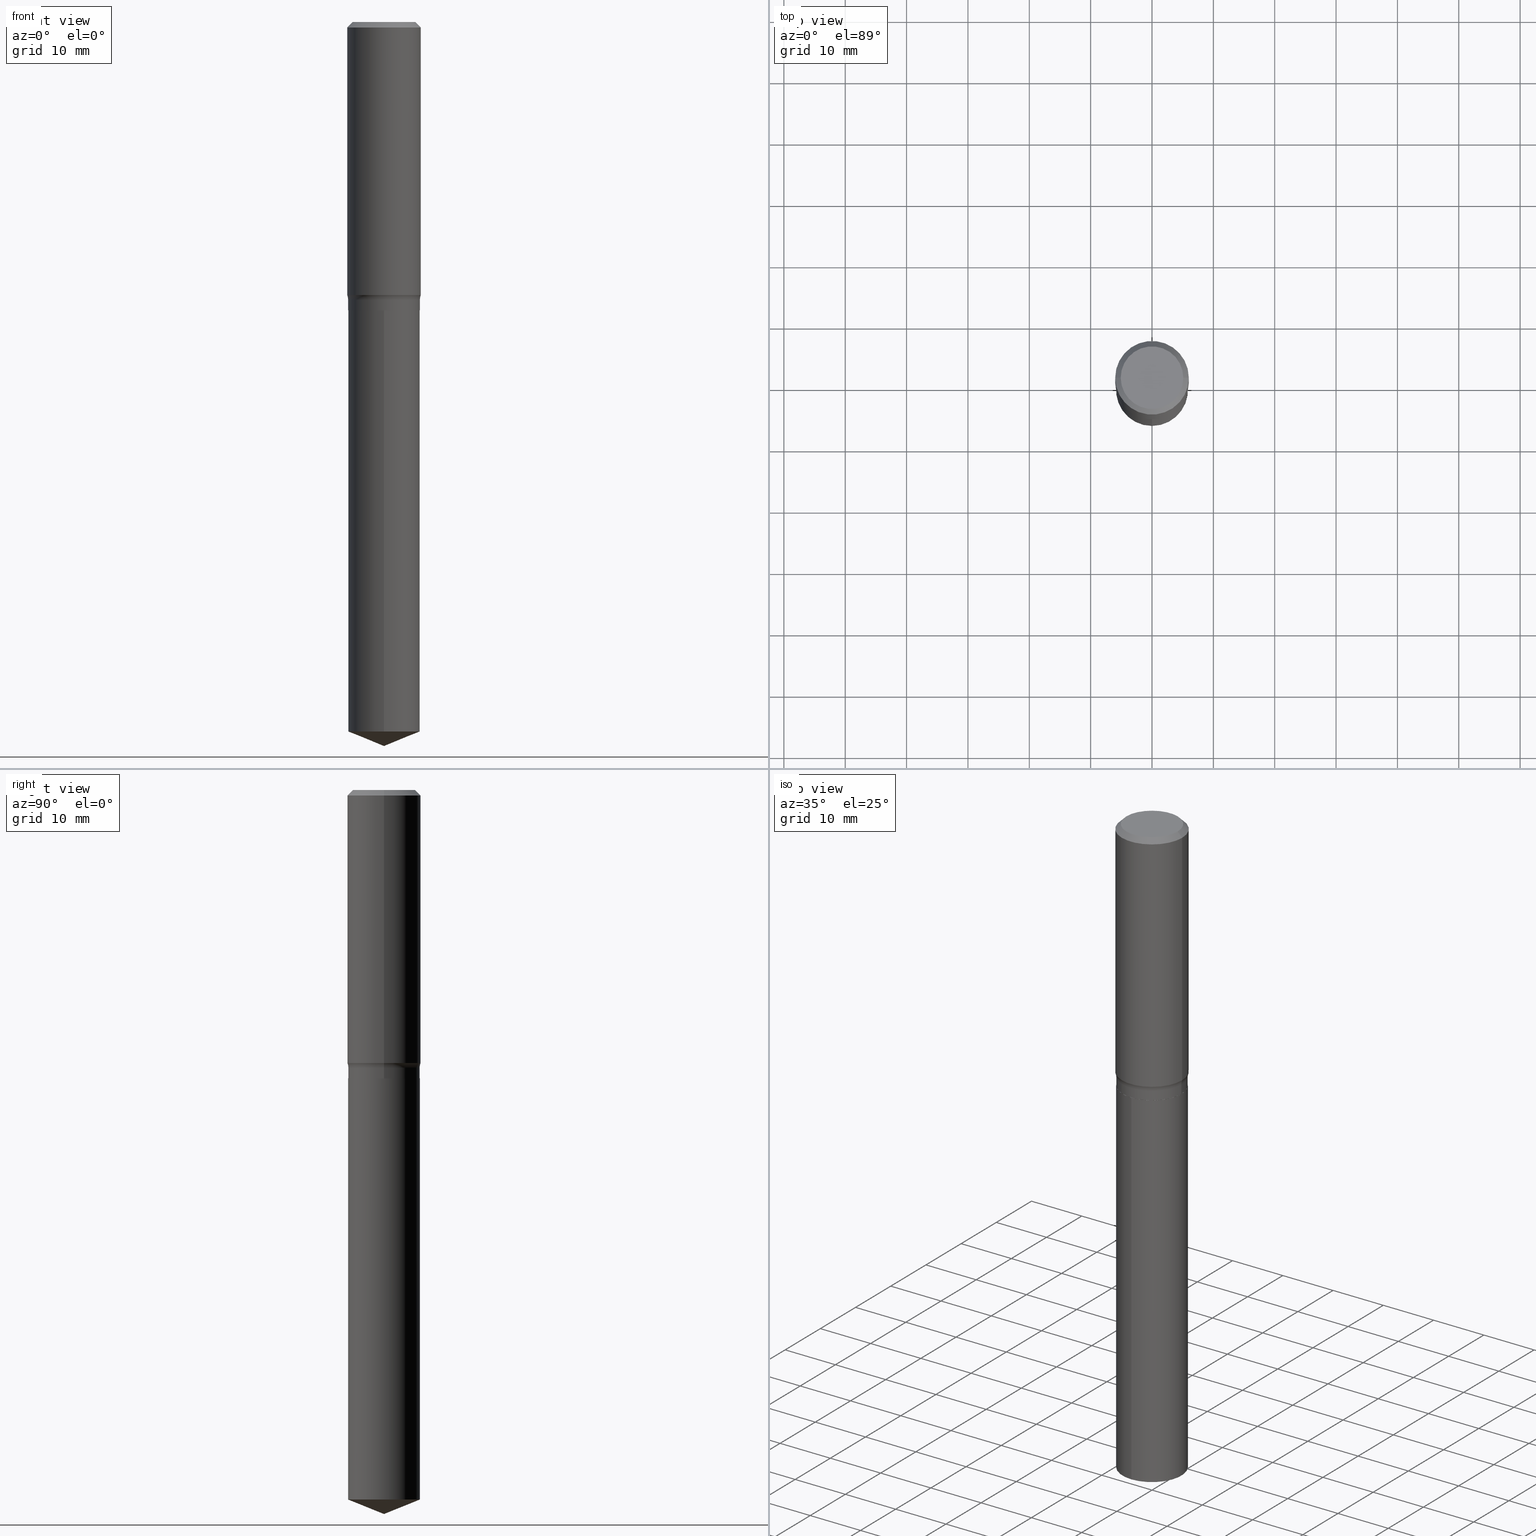
[diagram: canonical four-view strip — front | top / right | iso, engineering-drawing reading convention]
A machine part, canonical four-view strip (front | top / right | iso — engineering-drawing reading convention). The complete STEP part file that produces these views, byte-faithful:
ISO-10303-21;
HEADER;
FILE_DESCRIPTION (( 'STEP AP203' ),
    '1' );
FILE_NAME ('69310.STEP',
    '2024-04-19T17:47:21',
    ( '' ),
    ( '' ),
    'SwSTEP 2.0',
    'SolidWorks 2023',
    '' );
FILE_SCHEMA (( 'CONFIG_CONTROL_DESIGN' ));
ENDSEC;

DATA;
#1 = CARTESIAN_POINT ( 'NONE',  ( -0.2303000000000000047, -4.703801042749758729E-15, -1.850200000000000067 ) ) ;
#2 = CYLINDRICAL_SURFACE ( 'NONE', #242, 0.2303000000000000047 ) ;
#3 = CIRCLE ( 'NONE', #422, 0.2362000000000002153 ) ;
#4 = EDGE_LOOP ( 'NONE', ( #219, #205 ) ) ;
#5 = SECURITY_CLASSIFICATION_LEVEL ( 'unclassified' ) ;
#6 = EDGE_CURVE ( 'NONE', #470, #48, #251, .T. ) ;
#7 = ORIENTED_EDGE ( 'NONE', *, *, #92, .T. ) ;
#8 = CARTESIAN_POINT ( 'NONE',  ( 0.000000000000000000, 0.000000000000000000, 0.000000000000000000 ) ) ;
#9 = COORDINATED_UNIVERSAL_TIME_OFFSET ( 5, 0, .BEHIND. ) ;
#10 = DIRECTION ( 'NONE',  ( -6.982962677686265922E-15, -1.000000000000000000, 3.558638289619100968E-15 ) ) ;
#11 = CARTESIAN_POINT ( 'NONE',  ( -8.491645117030201611E-28, 1.212387596451452399E-13, 34.72407874015748064 ) ) ;
#12 = PERSON_AND_ORGANIZATION ( #91, #162 ) ;
#13 = CARTESIAN_POINT ( 'NONE',  ( -5.008488096090115757E-47, 7.150793614331959538E-33, 2.048068690724057264E-18 ) ) ;
#14 = ORIENTED_EDGE ( 'NONE', *, *, #139, .F. ) ;
#15 = DIRECTION ( 'NONE',  ( -2.445468806185136597E-29, 3.491481338843145583E-15, 1.000000000000000000 ) ) ;
#16 = AXIS2_PLACEMENT_3D ( 'NONE', #218, #184, #403 ) ;
#17 = ORIENTED_EDGE ( 'NONE', *, *, #97, .F. ) ;
#18 = AXIS2_PLACEMENT_3D ( 'NONE', #331, #343, #460 ) ;
#19 = DIRECTION ( 'NONE',  ( 2.445468806185136597E-29, -3.491481338843145583E-15, -1.000000000000000000 ) ) ;
#20 = ORIENTED_EDGE ( 'NONE', *, *, #215, .F. ) ;
#21 = CYLINDRICAL_SURFACE ( 'NONE', #370, 0.2362000000000001043 ) ;
#22 = ORIENTED_EDGE ( 'NONE', *, *, #169, .T. ) ;
#23 = APPROVAL_ROLE ( '' ) ;
#24 = CARTESIAN_POINT ( 'NONE',  ( 1.636379920455622583E-15, 0.2302999999999935377, -1.850700000000000900 ) ) ;
#25 =( NAMED_UNIT ( * ) SI_UNIT ( $, .STERADIAN. ) SOLID_ANGLE_UNIT ( ) );
#26 = ORIENTED_EDGE ( 'NONE', *, *, #417, .T. ) ;
#27 = CONICAL_SURFACE ( 'NONE', #466, 0.2361999999999999933, 0.7853981633974452814 ) ;
#28 = CARTESIAN_POINT ( 'NONE',  ( 0.2303000000000000047, -1.608176304671147266E-15, 1.122983511465803999E-29 ) ) ;
#29 = APPROVAL ( #424, 'UNSPECIFIED' ) ;
#30 = CYLINDRICAL_SURFACE ( 'NONE', #73, 0.2303000000000000047 ) ;
#31 = DIRECTION ( 'NONE',  ( 6.588037525764794446E-15, 0.9271838545667895337, 0.3746065934159066302 ) ) ;
#32 = DIRECTION ( 'NONE',  ( 1.000000000000000000, -6.982962677686266711E-15, 4.876176775795935793E-29 ) ) ;
#33 = PRODUCT_DEFINITION ( 'UNKNOWN', '', #442, #75 ) ;
#34 = CIRCLE ( 'NONE', #16, 0.2303000000000000047 ) ;
#35 = CIRCLE ( 'NONE', #459, 0.2303000000000000047 ) ;
#36 = CARTESIAN_POINT ( 'NONE',  ( -0.2298000000000000043, -4.826208079846189020E-15, -1.850700000000000012 ) ) ;
#37 = CARTESIAN_POINT ( 'NONE',  ( -1.001697619218023151E-46, 1.430158722866391908E-32, 4.096137381448114529E-18 ) ) ;
#38 = CYLINDRICAL_SURFACE ( 'NONE', #234, 0.2303000000000000047 ) ;
#39 = ADVANCED_FACE ( 'NONE', ( #211 ), #233, .T. ) ;
#40 = ORIENTED_EDGE ( 'NONE', *, *, #227, .F. ) ;
#41 = PERSON_AND_ORGANIZATION ( #91, #162 ) ;
#42 = AXIS2_PLACEMENT_3D ( 'NONE', #469, #243, #175 ) ;
#43 = TOROIDAL_SURFACE ( 'NONE', #173, 0.3082999999999999630, 0.07799999999999995826 ) ;
#44 = ADVANCED_FACE ( 'NONE', ( #266 ), #281, .T. ) ;
#45 = ORIENTED_EDGE ( 'NONE', *, *, #80, .T. ) ;
#46 = CALENDAR_DATE ( 2024, 19, 4 ) ;
#47 = DIRECTION ( 'NONE',  ( 1.000000000000000000, -6.982962677686267499E-15, 0.000000000000000000 ) ) ;
#48 = VERTEX_POINT ( 'NONE', #258 ) ;
#49 = PERSON_AND_ORGANIZATION ( #91, #162 ) ;
#50 = EDGE_CURVE ( 'NONE', #48, #470, #187, .T. ) ;
#51 = FACE_OUTER_BOUND ( 'NONE', #432, .T. ) ;
#52 = CIRCLE ( 'NONE', #360, 0.2303000000000000047 ) ;
#53 = APPROVAL_STATUS ( 'not_yet_approved' ) ;
#54 = DIRECTION ( 'NONE',  ( 1.000000000000000000, -6.982962677686265922E-15, 0.000000000000000000 ) ) ;
#55 = VERTEX_POINT ( 'NONE', #190 ) ;
#56 = FACE_OUTER_BOUND ( 'NONE', #4, .T. ) ;
#57 = DIRECTION ( 'NONE',  ( 1.000000000000000000, -6.982962677686266711E-15, 4.876140833081945105E-29 ) ) ;
#58 = CARTESIAN_POINT ( 'NONE',  ( 4.525829119606832626E-29, -6.461684513797009689E-15, -1.850700000000000012 ) ) ;
#59 = VECTOR ( 'NONE', #148, 39.37007874015748143 ) ;
#60 = ORIENTED_EDGE ( 'NONE', *, *, #312, .T. ) ;
#61 = VECTOR ( 'NONE', #102, 39.37007874015748143 ) ;
#62 = ORIENTED_EDGE ( 'NONE', *, *, #201, .F. ) ;
#63 = DIRECTION ( 'NONE',  ( -2.445468806185136597E-29, 3.491481338843145583E-15, 1.000000000000000000 ) ) ;
#64 = ORIENTED_EDGE ( 'NONE', *, *, #169, .F. ) ;
#65 = CARTESIAN_POINT ( 'NONE',  ( 0.2007700000000000040, -1.560767496960719672E-15, 4.096137381458473721E-18 ) ) ;
#66 = AXIS2_PLACEMENT_3D ( 'NONE', #208, #430, #54 ) ;
#67 = VECTOR ( 'NONE', #306, 39.37007874015748143 ) ;
#68 = DIRECTION ( 'NONE',  ( 1.000000000000000000, -6.982962677686266711E-15, 4.876140833081945105E-29 ) ) ;
#69 = DIMENSIONAL_EXPONENTS ( 1.000000000000000000, 0.000000000000000000, 0.000000000000000000, 0.000000000000000000, 0.000000000000000000, 0.000000000000000000, 0.000000000000000000 ) ;
#70 = FACE_OUTER_BOUND ( 'NONE', #88, .T. ) ;
#71 = CARTESIAN_POINT ( 'NONE',  ( 4.525829119606832626E-29, -6.461684513797009689E-15, -1.850700000000000012 ) ) ;
#72 = DIRECTION ( 'NONE',  ( 7.105427357601001859E-15, 1.000000000000000000, -3.491481338843145583E-15 ) ) ;
#73 = AXIS2_PLACEMENT_3D ( 'NONE', #71, #374, #336 ) ;
#74 = CC_DESIGN_SECURITY_CLASSIFICATION ( #100, ( #442 ) ) ;
#75 = DESIGN_CONTEXT ( 'detailed design', #305, 'design' ) ;
#76 = CARTESIAN_POINT ( 'NONE',  ( 1.113408915880530409E-28, -1.589657078221701403E-14, -4.552952760190164483 ) ) ;
#77 = EDGE_CURVE ( 'NONE', #394, #138, #373, .T. ) ;
#78 = VERTEX_POINT ( 'NONE', #263 ) ;
#79 = DATE_AND_TIME ( #46, #134 ) ;
#80 = EDGE_CURVE ( 'NONE', #55, #428, #337, .T. ) ;
#81 = ORIENTED_EDGE ( 'NONE', *, *, #186, .F. ) ;
#82 = CC_DESIGN_APPROVAL ( #450, ( #33 ) ) ;
#83 = COORDINATED_UNIVERSAL_TIME_OFFSET ( 5, 0, .BEHIND. ) ;
#84 = CARTESIAN_POINT ( 'NONE',  ( 4.525829119606832626E-29, -6.461684513797009689E-15, -1.850700000000000012 ) ) ;
#85 = PERSON_AND_ORGANIZATION_ROLE ( 'design_owner' ) ;
#86 = DIRECTION ( 'NONE',  ( 6.982962677686265922E-15, 1.000000000000000000, -3.491489177998303329E-15 ) ) ;
#87 = CARTESIAN_POINT ( 'NONE',  ( -0.2361999999999999933, 1.525672600634282748E-15, -0.03543000000000021826 ) ) ;
#88 = EDGE_LOOP ( 'NONE', ( #419, #182, #359, #333 ) ) ;
#89 = DIRECTION ( 'NONE',  ( 2.438088387897960049E-29, -3.491481338843145188E-15, -1.000000000000000000 ) ) ;
#90 = ORIENTED_EDGE ( 'NONE', *, *, #358, .F. ) ;
#91 = PERSON ( 'UNSPECIFIED', 'UNSPECIFIED', 'UNSPECIFIED', ('UNSPECIFIED'), ('UNSPECIFIED'), ('UNSPECIFIED') ) ;
#92 = EDGE_CURVE ( 'NONE', #78, #481, #181, .T. ) ;
#93 = FACE_OUTER_BOUND ( 'NONE', #129, .T. ) ;
#94 = VERTEX_POINT ( 'NONE', #340 ) ;
#95 = PRODUCT_DEFINITION_SHAPE ( 'NONE', 'NONE',  #33 ) ;
#96 = PLANE ( 'NONE',  #352 ) ;
#97 = EDGE_CURVE ( 'NONE', #428, #159, #488, .T. ) ;
#98 = AXIS2_PLACEMENT_3D ( 'NONE', #449, #151, #32 ) ;
#99 = ORIENTED_EDGE ( 'NONE', *, *, #465, .T. ) ;
#100 = SECURITY_CLASSIFICATION ( '', '', #5 ) ;
#101 = DATE_AND_TIME ( #367, #490 ) ;
#102 = DIRECTION ( 'NONE',  ( -2.445463332132347072E-29, 3.491489177998303329E-15, 1.000000000000000000 ) ) ;
#103 = ORIENTED_EDGE ( 'NONE', *, *, #116, .T. ) ;
#104 = CARTESIAN_POINT ( 'NONE',  ( 4.356847225099440869E-29, -6.220423153282950007E-15, -1.781600000000000517 ) ) ;
#105 = DIRECTION ( 'NONE',  ( 1.000000000000000000, -6.982962677686266711E-15, 4.876176775795935793E-29 ) ) ;
#106 = CARTESIAN_POINT ( 'NONE',  ( 8.664295980313993487E-31, -1.237031838352134079E-16, -0.03543000000000021826 ) ) ;
#107 = CARTESIAN_POINT ( 'NONE',  ( -0.2298000000000000043, -4.828857307020299432E-15, -1.850700000000000012 ) ) ;
#108 = AXIS2_PLACEMENT_3D ( 'NONE', #261, #296, #372 ) ;
#109 = LINE ( 'NONE', #146, #320 ) ;
#110 = MANIFOLD_SOLID_BREP ( 'Body-Move/Copy2[1]', #390 ) ;
#111 = CARTESIAN_POINT ( 'NONE',  ( 1.636379920455555924E-15, 0.2302999999999935377, -1.850700000000000900 ) ) ;
#112 = CC_DESIGN_DATE_AND_TIME_ASSIGNMENT ( #273, #158, ( #33 ) ) ;
#113 = CARTESIAN_POINT ( 'NONE',  ( 4.525829119606832626E-29, -6.461684513797009689E-15, -1.850700000000000012 ) ) ;
#114 = DIRECTION ( 'NONE',  ( -2.445468806185136597E-29, 3.491481338843145583E-15, 1.000000000000000000 ) ) ;
#115 = LINE ( 'NONE', #107, #380 ) ;
#116 = EDGE_CURVE ( 'NONE', #141, #144, #330, .T. ) ;
#117 = AXIS2_PLACEMENT_3D ( 'NONE', #13, #89, #128 ) ;
#118 = DIRECTION ( 'NONE',  ( -6.474490251793181784E-15, -0.9271838545667869802, 0.3746065934159131250 ) ) ;
#119 = CIRCLE ( 'NONE', #458, 0.2362000000000002153 ) ;
#120 = AXIS2_PLACEMENT_3D ( 'NONE', #8, #385, #420 ) ;
#121 = ADVANCED_FACE ( 'NONE', ( #70 ), #30, .T. ) ;
#122 = VERTEX_POINT ( 'NONE', #1 ) ;
#123 = PERSON_AND_ORGANIZATION ( #91, #162 ) ;
#124 = AXIS2_PLACEMENT_3D ( 'NONE', #104, #364, #316 ) ;
#125 = ADVANCED_FACE ( 'NONE', ( #486 ), #150, .T. ) ;
#126 = CC_DESIGN_APPROVAL ( #395, ( #100 ) ) ;
#127 = PERSON_AND_ORGANIZATION_ROLE ( 'classification_officer' ) ;
#128 = DIRECTION ( 'NONE',  ( -1.000000000000000000, 6.982962677686265922E-15, -4.876176775795935793E-29 ) ) ;
#129 = EDGE_LOOP ( 'NONE', ( #230, #444, #62, #256 ) ) ;
#130 = CARTESIAN_POINT ( 'NONE',  ( 4.525829119606832626E-29, -6.461684513797009689E-15, -1.850700000000000012 ) ) ;
#131 = ORIENTED_EDGE ( 'NONE', *, *, #116, .F. ) ;
#132 = AXIS2_PLACEMENT_3D ( 'NONE', #245, #386, #86 ) ;
#133 = FACE_OUTER_BOUND ( 'NONE', #280, .T. ) ;
#134 = LOCAL_TIME ( 13, 47, 21.00000000000000000, #9 ) ;
#135 = EDGE_LOOP ( 'NONE', ( #20, #200, #99, #283 ) ) ;
#136 = EDGE_CURVE ( 'NONE', #122, #138, #52, .T. ) ;
#137 = PLANE ( 'NONE',  #132 ) ;
#138 = VERTEX_POINT ( 'NONE', #410 ) ;
#139 = EDGE_CURVE ( 'NONE', #400, #122, #115, .T. ) ;
#140 = DIRECTION ( 'NONE',  ( -2.445468806185136597E-29, 3.491481338843145583E-15, 1.000000000000000000 ) ) ;
#141 = VERTEX_POINT ( 'NONE', #185 ) ;
#142 = DIRECTION ( 'NONE',  ( -0.7071067811866199593, 7.493145998870616062E-15, 0.7071067811864750752 ) ) ;
#143 = EDGE_CURVE ( 'NONE', #323, #144, #34, .T. ) ;
#144 = VERTEX_POINT ( 'NONE', #334 ) ;
#145 = AXIS2_PLACEMENT_3D ( 'NONE', #11, #165, #471 ) ;
#146 = CARTESIAN_POINT ( 'NONE',  ( -0.2362000000000001043, 1.678301941865357380E-15, -1.161852468318209317E-29 ) ) ;
#147 = DIRECTION ( 'NONE',  ( -2.445463332132347352E-29, 3.491489177998303329E-15, 1.000000000000000000 ) ) ;
#148 = DIRECTION ( 'NONE',  ( 0.7071067811866199593, -2.468850131083015945E-15, 0.7071067811864750752 ) ) ;
#149 = DIRECTION ( 'NONE',  ( 1.000000000000000000, -6.982962677686266711E-15, 0.000000000000000000 ) ) ;
#150 = CYLINDRICAL_SURFACE ( 'NONE', #98, 0.2362000000000001043 ) ;
#151 = DIRECTION ( 'NONE',  ( -2.445468806185136597E-29, 3.491481338843145583E-15, 1.000000000000000000 ) ) ;
#152 = CIRCLE ( 'NONE', #241, 0.2303000000000000047 ) ;
#153 = AXIS2_PLACEMENT_3D ( 'NONE', #84, #389, #10 ) ;
#154 = CARTESIAN_POINT ( 'NONE',  ( 4.525829119606832626E-29, -6.461684513797009689E-15, -1.850700000000000012 ) ) ;
#155 = CARTESIAN_POINT ( 'NONE',  ( 0.000000000000000000, 0.000000000000000000, 0.000000000000000000 ) ) ;
#156 = CONICAL_SURFACE ( 'NONE', #415, 0.2298000000000000043, 0.7853981633975507526 ) ;
#157 = ORIENTED_EDGE ( 'NONE', *, *, #50, .F. ) ;
#158 = DATE_TIME_ROLE ( 'creation_date' ) ;
#159 = VERTEX_POINT ( 'NONE', #24 ) ;
#160 = EDGE_CURVE ( 'NONE', #94, #481, #109, .T. ) ;
#161 = VECTOR ( 'NONE', #472, 39.37007874015748143 ) ;
#162 = ORGANIZATION ( 'UNSPECIFIED', 'UNSPECIFIED', '' ) ;
#163 = CARTESIAN_POINT ( 'NONE',  ( -0.2303000000000000047, -4.703801042749758729E-15, -1.781600000000000517 ) ) ;
#164 = CALENDAR_DATE ( 2024, 19, 4 ) ;
#165 = DIRECTION ( 'NONE',  ( -2.445463332132347352E-29, 3.491489177998303329E-15, 1.000000000000000000 ) ) ;
#166 = ORIENTED_EDGE ( 'NONE', *, *, #465, .F. ) ;
#167 = APPROVAL_ROLE ( '' ) ;
#168 = CARTESIAN_POINT ( 'NONE',  ( 4.524606385203739825E-29, -6.459938773127588186E-15, -1.850200000000000067 ) ) ;
#169 = EDGE_CURVE ( 'NONE', #94, #141, #119, .T. ) ;
#170 = ORIENTED_EDGE ( 'NONE', *, *, #143, .T. ) ;
#171 = AXIS2_PLACEMENT_3D ( 'NONE', #355, #398, #354 ) ;
#172 = CARTESIAN_POINT ( 'NONE',  ( 0.2362000000000001043, -1.649375784469496920E-15, 1.151752954443000508E-29 ) ) ;
#173 = AXIS2_PLACEMENT_3D ( 'NONE', #315, #238, #285 ) ;
#174 = EDGE_LOOP ( 'NONE', ( #14, #369, #382, #477 ) ) ;
#175 = DIRECTION ( 'NONE',  ( 1.000000000000000000, -6.982962677686267499E-15, 0.000000000000000000 ) ) ;
#176 = ORIENTED_EDGE ( 'NONE', *, *, #307, .F. ) ;
#177 = ADVANCED_FACE ( 'NONE', ( #204 ), #376, .F. ) ;
#178 = EDGE_LOOP ( 'NONE', ( #356, #60 ) ) ;
#179 = APPROVAL_STATUS ( 'not_yet_approved' ) ;
#180 = DIRECTION ( 'NONE',  ( 1.000000000000000000, -6.982962677686266711E-15, 4.876176775795935793E-29 ) ) ;
#181 = CIRCLE ( 'NONE', #108, 0.2361999999999999933 ) ;
#182 = ORIENTED_EDGE ( 'NONE', *, *, #97, .T. ) ;
#183 = COORDINATED_UNIVERSAL_TIME_OFFSET ( 5, 0, .BEHIND. ) ;
#184 = DIRECTION ( 'NONE',  ( -2.445468806185136597E-29, 3.491481338843145583E-15, 1.000000000000000000 ) ) ;
#185 = CARTESIAN_POINT ( 'NONE',  ( 0.2362000000000002153, -7.765896418643460673E-15, -1.751841135774361291 ) ) ;
#186 = EDGE_CURVE ( 'NONE', #48, #481, #448, .T. ) ;
#187 = CIRCLE ( 'NONE', #299, 0.2007700000000000040 ) ;
#188 = LINE ( 'NONE', #301, #61 ) ;
#189 = ADVANCED_FACE ( 'NONE', ( #408 ), #21, .T. ) ;
#190 = CARTESIAN_POINT ( 'NONE',  ( 1.136162264108688643E-28, -1.622145872098012038E-14, -4.645999999999999908 ) ) ;
#191 = LINE ( 'NONE', #220, #321 ) ;
#192 = CIRCLE ( 'NONE', #42, 0.2298000000000000043 ) ;
#193 = PERSON_AND_ORGANIZATION_ROLE ( 'design_supplier' ) ;
#194 = CONICAL_SURFACE ( 'NONE', #145, 97.44436430772883284, 1.186823891356146410 ) ;
#195 = ORIENTED_EDGE ( 'NONE', *, *, #201, .T. ) ;
#196 = CALENDAR_DATE ( 2024, 19, 4 ) ;
#197 = ADVANCED_FACE ( 'NONE', ( #326 ), #357, .F. ) ;
#198 = APPLICATION_PROTOCOL_DEFINITION ( 'international standard', 'config_control_design', 1994, #249 ) ;
#199 = LINE ( 'NONE', #172, #260 ) ;
#200 = ORIENTED_EDGE ( 'NONE', *, *, #136, .T. ) ;
#201 = EDGE_CURVE ( 'NONE', #138, #122, #152, .T. ) ;
#202 = CIRCLE ( 'NONE', #153, 0.2303000000000000047 ) ;
#203 = LINE ( 'NONE', #287, #226 ) ;
#204 = FACE_OUTER_BOUND ( 'NONE', #464, .T. ) ;
#205 = ORIENTED_EDGE ( 'NONE', *, *, #284, .F. ) ;
#206 = MECHANICAL_CONTEXT ( 'NONE', #249, 'mechanical' ) ;
#207 = ADVANCED_FACE ( 'NONE', ( #133 ), #27, .T. ) ;
#208 = CARTESIAN_POINT ( 'NONE',  ( 4.356847225099440869E-29, -6.220423153282950007E-15, -1.781600000000000517 ) ) ;
#209 = ORIENTED_EDGE ( 'NONE', *, *, #227, .T. ) ;
#210 = DIRECTION ( 'NONE',  ( -2.445468806185136877E-29, 3.491481338843145188E-15, 1.000000000000000000 ) ) ;
#211 = FACE_OUTER_BOUND ( 'NONE', #174, .T. ) ;
#212 = DIRECTION ( 'NONE',  ( 1.000000000000000000, -6.982962677686267499E-15, 0.000000000000000000 ) ) ;
#213 = APPROVAL_PERSON_ORGANIZATION ( #49, #395, #23 ) ;
#214 = ORIENTED_EDGE ( 'NONE', *, *, #399, .T. ) ;
#215 = EDGE_CURVE ( 'NONE', #122, #323, #203, .T. ) ;
#216 = CARTESIAN_POINT ( 'NONE',  ( 0.000000000000000000, 0.000000000000000000, 0.000000000000000000 ) ) ;
#217 = ORIENTED_EDGE ( 'NONE', *, *, #399, .F. ) ;
#218 = CARTESIAN_POINT ( 'NONE',  ( 4.356847225099440869E-29, -6.220423153282950007E-15, -1.781600000000000517 ) ) ;
#219 = ORIENTED_EDGE ( 'NONE', *, *, #270, .F. ) ;
#220 = CARTESIAN_POINT ( 'NONE',  ( 1.136162264108688643E-28, -1.622145872098012038E-14, -4.645999999999999908 ) ) ;
#221 = CIRCLE ( 'NONE', #66, 0.2303000000000000047 ) ;
#222 = ADVANCED_FACE ( 'NONE', ( #56 ), #96, .F. ) ;
#223 = DIRECTION ( 'NONE',  ( -2.445468806185136597E-29, 3.491481338843145583E-15, 1.000000000000000000 ) ) ;
#224 = ADVANCED_FACE ( 'NONE', ( #427 ), #137, .F. ) ;
#225 = DIRECTION ( 'NONE',  ( -2.445463332132347072E-29, 3.491489177998303329E-15, 1.000000000000000000 ) ) ;
#226 = VECTOR ( 'NONE', #210, 39.37007874015748143 ) ;
#227 = EDGE_CURVE ( 'NONE', #428, #425, #304, .T. ) ;
#228 = LOCAL_TIME ( 13, 47, 21.00000000000000000, #83 ) ;
#229 = CARTESIAN_POINT ( 'NONE',  ( -1.608176304671036037E-15, -0.2303000000000159919, -4.552952760190163595 ) ) ;
#230 = ORIENTED_EDGE ( 'NONE', *, *, #270, .T. ) ;
#231 = PERSON_AND_ORGANIZATION_ROLE ( 'creator' ) ;
#232 = ORIENTED_EDGE ( 'NONE', *, *, #463, .F. ) ;
#233 = CONICAL_SURFACE ( 'NONE', #489, 0.2298000000000000043, 0.7853981633975507526 ) ;
#234 = AXIS2_PLACEMENT_3D ( 'NONE', #154, #269, #418 ) ;
#235 = ORIENTED_EDGE ( 'NONE', *, *, #160, .T. ) ;
#236 = DATE_AND_TIME ( #349, #292 ) ;
#237 = VERTEX_POINT ( 'NONE', #438 ) ;
#238 = DIRECTION ( 'NONE',  ( -2.445468806185136597E-29, 3.491481338843145583E-15, 1.000000000000000000 ) ) ;
#239 = APPROVAL_DATE_TIME ( #350, #29 ) ;
#240 = CC_DESIGN_PERSON_AND_ORGANIZATION_ASSIGNMENT ( #123, #85, ( #248 ) ) ;
#241 = AXIS2_PLACEMENT_3D ( 'NONE', #168, #362, #396 ) ;
#242 = AXIS2_PLACEMENT_3D ( 'NONE', #155, #63, #105 ) ;
#243 = DIRECTION ( 'NONE',  ( -2.445468806185136597E-29, 3.491481338843145583E-15, 1.000000000000000000 ) ) ;
#244 = ORIENTED_EDGE ( 'NONE', *, *, #6, .F. ) ;
#245 = CARTESIAN_POINT ( 'NONE',  ( 4.525829119606832626E-29, -6.461684513797009689E-15, -1.850700000000000012 ) ) ;
#246 = CARTESIAN_POINT ( 'NONE',  ( -1.001697619218023151E-46, 1.430158722866391908E-32, 4.096137381448114529E-18 ) ) ;
#247 = DIRECTION ( 'NONE',  ( -2.445463332132347352E-29, 3.491489177998303329E-15, 1.000000000000000000 ) ) ;
#248 = PRODUCT ( '69310', '69310', '', ( #206 ) ) ;
#249 = APPLICATION_CONTEXT ( 'configuration controlled 3d designs of mechanical parts and assemblies' ) ;
#250 = ORIENTED_EDGE ( 'NONE', *, *, #80, .F. ) ;
#251 = CIRCLE ( 'NONE', #451, 0.2007700000000000040 ) ;
#252 = LINE ( 'NONE', #28, #482 ) ;
#253 = AXIS2_PLACEMENT_3D ( 'NONE', #216, #265, #180 ) ;
#254 = ORIENTED_EDGE ( 'NONE', *, *, #50, .T. ) ;
#255 =( NAMED_UNIT ( * ) PLANE_ANGLE_UNIT ( ) SI_UNIT ( $, .RADIAN. ) );
#256 = ORIENTED_EDGE ( 'NONE', *, *, #77, .F. ) ;
#257 =( LENGTH_UNIT ( ) NAMED_UNIT ( * ) SI_UNIT ( $, .METRE. ) );
#258 = CARTESIAN_POINT ( 'NONE',  ( -0.2007700000000000040, 1.463821008716677338E-15, 4.096137381438094301E-18 ) ) ;
#259 = EDGE_CURVE ( 'NONE', #144, #323, #221, .T. ) ;
#260 = VECTOR ( 'NONE', #322, 39.37007874015748143 ) ;
#261 = CARTESIAN_POINT ( 'NONE',  ( 8.664295980313993487E-31, -1.237031838352134079E-16, -0.03543000000000021826 ) ) ;
#262 = DIRECTION ( 'NONE',  ( -2.445468806185136597E-29, 3.491481338843145583E-15, 1.000000000000000000 ) ) ;
#263 = CARTESIAN_POINT ( 'NONE',  ( 0.2361999999999999933, -1.773078968304709514E-15, -0.03543000000000021826 ) ) ;
#264 = DIRECTION ( 'NONE',  ( 2.445468806185136597E-29, -3.491481338843145583E-15, -1.000000000000000000 ) ) ;
#265 = DIRECTION ( 'NONE',  ( -2.445468806185136597E-29, 3.491481338843145583E-15, 1.000000000000000000 ) ) ;
#266 = FACE_OUTER_BOUND ( 'NONE', #317, .T. ) ;
#267 = VECTOR ( 'NONE', #31, 39.37007874015748854 ) ;
#268 =( GEOMETRIC_REPRESENTATION_CONTEXT ( 3 ) GLOBAL_UNCERTAINTY_ASSIGNED_CONTEXT ( ( #461 ) ) GLOBAL_UNIT_ASSIGNED_CONTEXT ( ( #406, #255, #25 ) ) REPRESENTATION_CONTEXT ( 'NONE', 'WORKASPACE' ) );
#269 = DIRECTION ( 'NONE',  ( -2.445463332132347352E-29, 3.491489177998303329E-15, 1.000000000000000000 ) ) ;
#270 = EDGE_CURVE ( 'NONE', #394, #400, #346, .T. ) ;
#271 = PRODUCT_RELATED_PRODUCT_CATEGORY ( 'detail', '', ( #248 ) ) ;
#272 = EDGE_LOOP ( 'NONE', ( #195, #402, #366, #166 ) ) ;
#273 = DATE_AND_TIME ( #164, #467 ) ;
#274 = ORIENTED_EDGE ( 'NONE', *, *, #6, .T. ) ;
#275 = DIRECTION ( 'NONE',  ( -1.000000000000000000, 6.982962677686266711E-15, 0.000000000000000000 ) ) ;
#276 = CC_DESIGN_PERSON_AND_ORGANIZATION_ASSIGNMENT ( #309, #127, ( #100 ) ) ;
#277 = ORIENTED_EDGE ( 'NONE', *, *, #345, .F. ) ;
#278 = PERSON_AND_ORGANIZATION ( #91, #162 ) ;
#279 = CARTESIAN_POINT ( 'NONE',  ( 8.664295980313993487E-31, -1.237031838352134079E-16, -0.03543000000000021826 ) ) ;
#280 = EDGE_LOOP ( 'NONE', ( #348, #157, #294, #319 ) ) ;
#281 = CONICAL_SURFACE ( 'NONE', #338, 0.2361999999999999933, 0.7853981633974452814 ) ;
#282 = CARTESIAN_POINT ( 'NONE',  ( 4.525829119606832626E-29, -6.461684513797009689E-15, -1.850700000000000012 ) ) ;
#283 = ORIENTED_EDGE ( 'NONE', *, *, #143, .F. ) ;
#284 = EDGE_CURVE ( 'NONE', #400, #394, #192, .T. ) ;
#285 = DIRECTION ( 'NONE',  ( 1.000000000000000000, -6.982962677686269077E-15, 4.883557194083113462E-29 ) ) ;
#286 = ORIENTED_EDGE ( 'NONE', *, *, #160, .F. ) ;
#287 = CARTESIAN_POINT ( 'NONE',  ( -0.2303000000000000047, 1.636379920455510762E-15, -1.132830751285704750E-29 ) ) ;
#288 = SHAPE_DEFINITION_REPRESENTATION ( #95, #293 ) ;
#289 = CARTESIAN_POINT ( 'NONE',  ( 0.000000000000000000, 0.000000000000000000, 0.000000000000000000 ) ) ;
#290 = VECTOR ( 'NONE', #225, 39.37007874015748143 ) ;
#291 = LENGTH_MEASURE_WITH_UNIT ( LENGTH_MEASURE( 0.02539999999999999897 ), #257 );
#292 = LOCAL_TIME ( 13, 47, 21.00000000000000000, #426 ) ;
#293 = ADVANCED_BREP_SHAPE_REPRESENTATION ( '69310', ( #110, #439, #120 ), #268 ) ;
#294 = ORIENTED_EDGE ( 'NONE', *, *, #186, .T. ) ;
#295 = FACE_OUTER_BOUND ( 'NONE', #423, .T. ) ;
#296 = DIRECTION ( 'NONE',  ( -2.445468806185136597E-29, 3.491481338843145583E-15, 1.000000000000000000 ) ) ;
#297 = EDGE_CURVE ( 'NONE', #237, #159, #473, .T. ) ;
#298 = CARTESIAN_POINT ( 'NONE',  ( 4.524606385203739825E-29, -6.459938773127588186E-15, -1.850200000000000067 ) ) ;
#299 = AXIS2_PLACEMENT_3D ( 'NONE', #37, #223, #68 ) ;
#300 = DIRECTION ( 'NONE',  ( -1.000000000000000000, 6.982962677686266711E-15, 0.000000000000000000 ) ) ;
#301 = CARTESIAN_POINT ( 'NONE',  ( -1.608176304671101709E-15, -0.2303000000000064440, -1.850699999999999124 ) ) ;
#302 = DIRECTION ( 'NONE',  ( -2.445468806185136597E-29, 3.491481338843145583E-15, 1.000000000000000000 ) ) ;
#303 = CARTESIAN_POINT ( 'NONE',  ( -0.3082999999999999630, -4.029819898934561003E-15, -1.781600000000000517 ) ) ;
#304 = CIRCLE ( 'NONE', #431, 0.2303000000000000047 ) ;
#305 = APPLICATION_CONTEXT ( 'configuration controlled 3d designs of mechanical parts and assemblies' ) ;
#306 = DIRECTION ( 'NONE',  ( 0.7071067811865453523, -7.319954787623248157E-15, -0.7071067811865496822 ) ) ;
#307 = EDGE_CURVE ( 'NONE', #141, #78, #199, .T. ) ;
#308 = EDGE_LOOP ( 'NONE', ( #217, #45, #232 ) ) ;
#309 = PERSON_AND_ORGANIZATION ( #91, #162 ) ;
#310 = ADVANCED_FACE ( 'NONE', ( #436 ), #43, .F. ) ;
#311 = PERSON_AND_ORGANIZATION ( #91, #162 ) ;
#312 = EDGE_CURVE ( 'NONE', #159, #237, #202, .T. ) ;
#313 = DIRECTION ( 'NONE',  ( 1.000000000000000000, -6.982962677686266711E-15, 0.000000000000000000 ) ) ;
#314 = ORIENTED_EDGE ( 'NONE', *, *, #312, .F. ) ;
#315 = CARTESIAN_POINT ( 'NONE',  ( 4.356847225099440869E-29, -6.220423153282950007E-15, -1.781600000000000517 ) ) ;
#316 = DIRECTION ( 'NONE',  ( 1.000000000000000000, -6.982962677686269077E-15, 4.883557194083113462E-29 ) ) ;
#317 = EDGE_LOOP ( 'NONE', ( #244, #327, #7, #81 ) ) ;
#318 = DIRECTION ( 'NONE',  ( 1.000000000000000000, -6.982962677686265922E-15, 4.876176775795935793E-29 ) ) ;
#319 = ORIENTED_EDGE ( 'NONE', *, *, #455, .T. ) ;
#320 = VECTOR ( 'NONE', #485, 39.37007874015748143 ) ;
#321 = VECTOR ( 'NONE', #118, 39.37007874015748143 ) ;
#322 = DIRECTION ( 'NONE',  ( -2.445468806185136877E-29, 3.491481338843145188E-15, 1.000000000000000000 ) ) ;
#323 = VERTEX_POINT ( 'NONE', #163 ) ;
#324 = CC_DESIGN_PERSON_AND_ORGANIZATION_ASSIGNMENT ( #12, #391, ( #442 ) ) ;
#325 = DIRECTION ( 'NONE',  ( -2.445468806185136597E-29, 3.491481338843145583E-15, 1.000000000000000000 ) ) ;
#326 = FACE_OUTER_BOUND ( 'NONE', #363, .T. ) ;
#327 = ORIENTED_EDGE ( 'NONE', *, *, #492, .T. ) ;
#328 = CYLINDRICAL_SURFACE ( 'NONE', #253, 0.2303000000000000047 ) ;
#329 = ORIENTED_EDGE ( 'NONE', *, *, #259, .T. ) ;
#330 = CIRCLE ( 'NONE', #441, 0.07799999999999995826 ) ;
#331 = CARTESIAN_POINT ( 'NONE',  ( -8.491645117030201611E-28, 1.212387596451452399E-13, 34.72407874015748064 ) ) ;
#332 = CC_DESIGN_PERSON_AND_ORGANIZATION_ASSIGNMENT ( #468, #193, ( #442 ) ) ;
#333 = ORIENTED_EDGE ( 'NONE', *, *, #417, .F. ) ;
#334 = CARTESIAN_POINT ( 'NONE',  ( 0.2303000000000000047, -7.828599457954096682E-15, -1.781600000000000517 ) ) ;
#335 = CARTESIAN_POINT ( 'NONE',  ( 0.2361999999999999933, -1.744152810908849053E-15, -0.03543000000000021826 ) ) ;
#336 = DIRECTION ( 'NONE',  ( -6.982962677686265922E-15, -1.000000000000000000, 3.558638289619100968E-15 ) ) ;
#337 = LINE ( 'NONE', #377, #267 ) ;
#338 = AXIS2_PLACEMENT_3D ( 'NONE', #106, #264, #300 ) ;
#339 = CIRCLE ( 'NONE', #361, 0.2361999999999999933 ) ;
#340 = CARTESIAN_POINT ( 'NONE',  ( -0.2362000000000002153, -4.438218692308605387E-15, -1.751841135774361291 ) ) ;
#341 = ADVANCED_FACE ( 'NONE', ( #93 ), #156, .T. ) ;
#342 = CARTESIAN_POINT ( 'NONE',  ( 0.3082999999999999630, -8.373270546813624728E-15, -1.781600000000000517 ) ) ;
#343 = DIRECTION ( 'NONE',  ( -2.445463332132347352E-29, 3.491489177998303329E-15, 1.000000000000000000 ) ) ;
#344 = DIRECTION ( 'NONE',  ( -2.445468806185136877E-29, 3.491481338843145188E-15, 1.000000000000000000 ) ) ;
#345 = EDGE_CURVE ( 'NONE', #141, #94, #3, .T. ) ;
#346 = CIRCLE ( 'NONE', #407, 0.2298000000000000043 ) ;
#347 = COORDINATED_UNIVERSAL_TIME_OFFSET ( 5, 0, .BEHIND. ) ;
#348 = ORIENTED_EDGE ( 'NONE', *, *, #492, .F. ) ;
#349 = CALENDAR_DATE ( 2024, 19, 4 ) ;
#350 = DATE_AND_TIME ( #196, #228 ) ;
#351 = ADVANCED_FACE ( 'NONE', ( #51 ), #194, .T. ) ;
#352 = AXIS2_PLACEMENT_3D ( 'NONE', #282, #393, #318 ) ;
#353 = CONICAL_SURFACE ( 'NONE', #18, 97.44436430772883284, 1.186823891356146410 ) ;
#354 = DIRECTION ( 'NONE',  ( -6.982962677686265922E-15, -1.000000000000000000, 3.558638289619100968E-15 ) ) ;
#355 = CARTESIAN_POINT ( 'NONE',  ( 4.525829119606832626E-29, -6.461684513797009689E-15, -1.850700000000000012 ) ) ;
#356 = ORIENTED_EDGE ( 'NONE', *, *, #297, .T. ) ;
#357 = PLANE ( 'NONE',  #117 ) ;
#358 = EDGE_CURVE ( 'NONE', #94, #323, #409, .T. ) ;
#359 = ORIENTED_EDGE ( 'NONE', *, *, #297, .F. ) ;
#360 = AXIS2_PLACEMENT_3D ( 'NONE', #298, #302, #456 ) ;
#361 = AXIS2_PLACEMENT_3D ( 'NONE', #454, #114, #149 ) ;
#362 = DIRECTION ( 'NONE',  ( -2.445468806185136597E-29, 3.491481338843145583E-15, 1.000000000000000000 ) ) ;
#363 = EDGE_LOOP ( 'NONE', ( #254, #274 ) ) ;
#364 = DIRECTION ( 'NONE',  ( -2.445468806185136597E-29, 3.491481338843145583E-15, 1.000000000000000000 ) ) ;
#365 = CARTESIAN_POINT ( 'NONE',  ( 1.636379920455622188E-15, 0.2302999999999841285, -4.552952760190164483 ) ) ;
#366 = ORIENTED_EDGE ( 'NONE', *, *, #259, .F. ) ;
#367 = CALENDAR_DATE ( 2024, 19, 4 ) ;
#368 = ADVANCED_FACE ( 'NONE', ( #404 ), #353, .T. ) ;
#369 = ORIENTED_EDGE ( 'NONE', *, *, #284, .T. ) ;
#370 = AXIS2_PLACEMENT_3D ( 'NONE', #289, #379, #384 ) ;
#371 = DIRECTION ( 'NONE',  ( -1.000000000000000000, 7.105427357601001859E-15, 0.000000000000000000 ) ) ;
#372 = DIRECTION ( 'NONE',  ( 1.000000000000000000, -6.982962677686266711E-15, 0.000000000000000000 ) ) ;
#373 = LINE ( 'NONE', #453, #59 ) ;
#374 = DIRECTION ( 'NONE',  ( -2.445463332132347352E-29, 3.491489177998303329E-15, 1.000000000000000000 ) ) ;
#375 = CC_DESIGN_DATE_AND_TIME_ASSIGNMENT ( #236, #388, ( #100 ) ) ;
#376 = TOROIDAL_SURFACE ( 'NONE', #124, 0.3082999999999999630, 0.07799999999999995826 ) ;
#377 = CARTESIAN_POINT ( 'NONE',  ( 1.136164308041671340E-28, -1.622142970513121582E-14, -4.645999999999999908 ) ) ;
#378 = DIRECTION ( 'NONE',  ( -6.982962677686265922E-15, -1.000000000000000000, 2.372425526412734110E-15 ) ) ;
#379 = DIRECTION ( 'NONE',  ( -2.445468806185136597E-29, 3.491481338843145583E-15, 1.000000000000000000 ) ) ;
#380 = VECTOR ( 'NONE', #142, 39.37007874015748143 ) ;
#381 = APPROVAL_PERSON_ORGANIZATION ( #41, #29, #167 ) ;
#382 = ORIENTED_EDGE ( 'NONE', *, *, #77, .T. ) ;
#383 = APPROVAL_ROLE ( '' ) ;
#384 = DIRECTION ( 'NONE',  ( 1.000000000000000000, -6.982962677686266711E-15, 4.876176775795935793E-29 ) ) ;
#385 = DIRECTION ( 'NONE',  ( 0.000000000000000000, 0.000000000000000000, 1.000000000000000000 ) ) ;
#386 = DIRECTION ( 'NONE',  ( 2.445463332132347072E-29, -3.491489177998303329E-15, -1.000000000000000000 ) ) ;
#387 = EDGE_LOOP ( 'NONE', ( #90, #277, #103, #329 ) ) ;
#388 = DATE_TIME_ROLE ( 'classification_date' ) ;
#389 = DIRECTION ( 'NONE',  ( -2.445463332132347352E-29, 3.491489177998303329E-15, 1.000000000000000000 ) ) ;
#390 = CLOSED_SHELL ( 'NONE', ( #121, #368, #351, #433, #224 ) ) ;
#391 = PERSON_AND_ORGANIZATION_ROLE ( 'creator' ) ;
#392 = AXIS2_PLACEMENT_3D ( 'NONE', #303, #72, #371 ) ;
#393 = DIRECTION ( 'NONE',  ( -2.438088387897960049E-29, 3.491481338843145188E-15, 1.000000000000000000 ) ) ;
#394 = VERTEX_POINT ( 'NONE', #457 ) ;
#395 = APPROVAL ( #179, 'UNSPECIFIED' ) ;
#396 = DIRECTION ( 'NONE',  ( 1.000000000000000000, -6.982962677686265922E-15, 0.000000000000000000 ) ) ;
#397 = DIRECTION ( 'NONE',  ( -2.445468806185136597E-29, 3.491481338843145583E-15, 1.000000000000000000 ) ) ;
#398 = DIRECTION ( 'NONE',  ( -2.445463332132347352E-29, 3.491489177998303329E-15, 1.000000000000000000 ) ) ;
#399 = EDGE_CURVE ( 'NONE', #55, #425, #191, .T. ) ;
#400 = VERTEX_POINT ( 'NONE', #36 ) ;
#401 = CARTESIAN_POINT ( 'NONE',  ( -0.2361999999999999933, -1.441809967139230695E-15, -0.03543000000000021826 ) ) ;
#402 = ORIENTED_EDGE ( 'NONE', *, *, #215, .T. ) ;
#403 = DIRECTION ( 'NONE',  ( 1.000000000000000000, -6.982962677686265922E-15, 0.000000000000000000 ) ) ;
#404 = FACE_OUTER_BOUND ( 'NONE', #308, .T. ) ;
#405 = ORIENTED_EDGE ( 'NONE', *, *, #307, .T. ) ;
#406 =( CONVERSION_BASED_UNIT ( 'INCH', #291 ) LENGTH_UNIT ( ) NAMED_UNIT ( #69 ) );
#407 = AXIS2_PLACEMENT_3D ( 'NONE', #130, #15, #47 ) ;
#408 = FACE_OUTER_BOUND ( 'NONE', #440, .T. ) ;
#409 = CIRCLE ( 'NONE', #392, 0.07799999999999995826 ) ;
#410 = CARTESIAN_POINT ( 'NONE',  ( 0.2303000000000000047, -8.068115077798734860E-15, -1.850200000000000067 ) ) ;
#411 = ADVANCED_FACE ( 'NONE', ( #483 ), #328, .T. ) ;
#412 = DIRECTION ( 'NONE',  ( -6.982962677686266711E-15, -1.000000000000000000, 3.491481338843145583E-15 ) ) ;
#413 = LINE ( 'NONE', #335, #67 ) ;
#414 = CLOSED_SHELL ( 'NONE', ( #341, #44, #189, #177, #484, #411, #310, #125, #207, #197, #222, #39 ) ) ;
#415 = AXIS2_PLACEMENT_3D ( 'NONE', #58, #325, #212 ) ;
#416 = DIRECTION ( 'NONE',  ( 1.000000000000000000, -6.982962677686267499E-15, 0.000000000000000000 ) ) ;
#417 = EDGE_CURVE ( 'NONE', #425, #237, #188, .T. ) ;
#418 = DIRECTION ( 'NONE',  ( -6.982962677686265922E-15, -1.000000000000000000, 3.558638289619100968E-15 ) ) ;
#419 = ORIENTED_EDGE ( 'NONE', *, *, #463, .T. ) ;
#420 = DIRECTION ( 'NONE',  ( 1.000000000000000000, 0.000000000000000000, 0.000000000000000000 ) ) ;
#421 = APPLICATION_PROTOCOL_DEFINITION ( 'international standard', 'config_control_design', 1994, #305 ) ;
#422 = AXIS2_PLACEMENT_3D ( 'NONE', #478, #140, #313 ) ;
#423 = EDGE_LOOP ( 'NONE', ( #17, #209, #26, #314 ) ) ;
#424 = APPROVAL_STATUS ( 'not_yet_approved' ) ;
#425 = VERTEX_POINT ( 'NONE', #229 ) ;
#426 = COORDINATED_UNIVERSAL_TIME_OFFSET ( 5, 0, .BEHIND. ) ;
#427 = FACE_OUTER_BOUND ( 'NONE', #178, .T. ) ;
#428 = VERTEX_POINT ( 'NONE', #365 ) ;
#429 = APPROVAL_DATE_TIME ( #79, #450 ) ;
#430 = DIRECTION ( 'NONE',  ( -2.445468806185136597E-29, 3.491481338843145583E-15, 1.000000000000000000 ) ) ;
#431 = AXIS2_PLACEMENT_3D ( 'NONE', #434, #247, #476 ) ;
#432 = EDGE_LOOP ( 'NONE', ( #250, #214, #40 ) ) ;
#433 = ADVANCED_FACE ( 'NONE', ( #295 ), #38, .T. ) ;
#434 = CARTESIAN_POINT ( 'NONE',  ( 1.113408915880530409E-28, -1.589657078221701403E-14, -4.552952760190164483 ) ) ;
#435 = EDGE_LOOP ( 'NONE', ( #286, #22, #405, #437 ) ) ;
#436 = FACE_OUTER_BOUND ( 'NONE', #387, .T. ) ;
#437 = ORIENTED_EDGE ( 'NONE', *, *, #455, .F. ) ;
#438 = CARTESIAN_POINT ( 'NONE',  ( -1.608176304671101709E-15, -0.2303000000000064440, -1.850699999999999124 ) ) ;
#439 = MANIFOLD_SOLID_BREP ( 'Body-Move/Copy2[2]', #414 ) ;
#440 = EDGE_LOOP ( 'NONE', ( #462, #235, #479, #176 ) ) ;
#441 = AXIS2_PLACEMENT_3D ( 'NONE', #342, #412, #447 ) ;
#442 = PRODUCT_DEFINITION_FORMATION_WITH_SPECIFIED_SOURCE ( 'ANY', '', #248, .NOT_KNOWN. ) ;
#443 = DIRECTION ( 'NONE',  ( 1.000000000000000000, -6.982962677686266711E-15, 0.000000000000000000 ) ) ;
#444 = ORIENTED_EDGE ( 'NONE', *, *, #139, .T. ) ;
#445 = APPROVAL_DATE_TIME ( #101, #395 ) ;
#446 = CARTESIAN_POINT ( 'NONE',  ( 4.284072850928141518E-29, -6.116520634173963359E-15, -1.751841135774361291 ) ) ;
#447 = DIRECTION ( 'NONE',  ( 1.000000000000000000, -6.982962677686261977E-15, 0.000000000000000000 ) ) ;
#448 = LINE ( 'NONE', #87, #161 ) ;
#449 = CARTESIAN_POINT ( 'NONE',  ( 0.000000000000000000, 0.000000000000000000, 0.000000000000000000 ) ) ;
#450 = APPROVAL ( #53, 'UNSPECIFIED' ) ;
#451 = AXIS2_PLACEMENT_3D ( 'NONE', #246, #397, #57 ) ;
#452 = CC_DESIGN_APPROVAL ( #29, ( #442 ) ) ;
#453 = CARTESIAN_POINT ( 'NONE',  ( 0.2298000000000000043, -8.066369337129314145E-15, -1.850700000000000012 ) ) ;
#454 = CARTESIAN_POINT ( 'NONE',  ( 8.664295980313993487E-31, -1.237031838352134079E-16, -0.03543000000000021826 ) ) ;
#455 = EDGE_CURVE ( 'NONE', #481, #78, #339, .T. ) ;
#456 = DIRECTION ( 'NONE',  ( 1.000000000000000000, -6.982962677686265922E-15, 0.000000000000000000 ) ) ;
#457 = CARTESIAN_POINT ( 'NONE',  ( 0.2298000000000000043, -8.066369337129314145E-15, -1.850700000000000012 ) ) ;
#458 = AXIS2_PLACEMENT_3D ( 'NONE', #446, #262, #443 ) ;
#459 = AXIS2_PLACEMENT_3D ( 'NONE', #76, #147, #378 ) ;
#460 = DIRECTION ( 'NONE',  ( -6.982962677686266711E-15, -1.000000000000000000, 3.498761904101812964E-15 ) ) ;
#461 = UNCERTAINTY_MEASURE_WITH_UNIT (LENGTH_MEASURE( 1.000000000000000082E-05 ), #406, 'distance_accuracy_value', 'NONE');
#462 = ORIENTED_EDGE ( 'NONE', *, *, #345, .T. ) ;
#463 = EDGE_CURVE ( 'NONE', #425, #428, #35, .T. ) ;
#464 = EDGE_LOOP ( 'NONE', ( #64, #474, #170, #131 ) ) ;
#465 = EDGE_CURVE ( 'NONE', #138, #144, #252, .T. ) ;
#466 = AXIS2_PLACEMENT_3D ( 'NONE', #279, #19, #275 ) ;
#467 = LOCAL_TIME ( 13, 47, 21.00000000000000000, #347 ) ;
#468 = PERSON_AND_ORGANIZATION ( #91, #162 ) ;
#469 = CARTESIAN_POINT ( 'NONE',  ( 4.525829119606832626E-29, -6.461684513797009689E-15, -1.850700000000000012 ) ) ;
#470 = VERTEX_POINT ( 'NONE', #65 ) ;
#471 = DIRECTION ( 'NONE',  ( -6.982962677686266711E-15, -1.000000000000000000, 3.498761904101812964E-15 ) ) ;
#472 = DIRECTION ( 'NONE',  ( -0.7071067811865453523, 2.468850131082234184E-15, -0.7071067811865496822 ) ) ;
#473 = CIRCLE ( 'NONE', #171, 0.2303000000000000047 ) ;
#474 = ORIENTED_EDGE ( 'NONE', *, *, #358, .T. ) ;
#475 = APPROVAL_PERSON_ORGANIZATION ( #278, #450, #383 ) ;
#476 = DIRECTION ( 'NONE',  ( -6.982962677686265922E-15, -1.000000000000000000, 2.372425526412734110E-15 ) ) ;
#477 = ORIENTED_EDGE ( 'NONE', *, *, #136, .F. ) ;
#478 = CARTESIAN_POINT ( 'NONE',  ( 4.284072850928141518E-29, -6.116520634173963359E-15, -1.751841135774361291 ) ) ;
#479 = ORIENTED_EDGE ( 'NONE', *, *, #92, .F. ) ;
#480 = FACE_OUTER_BOUND ( 'NONE', #272, .T. ) ;
#481 = VERTEX_POINT ( 'NONE', #401 ) ;
#482 = VECTOR ( 'NONE', #344, 39.37007874015748143 ) ;
#483 = FACE_OUTER_BOUND ( 'NONE', #135, .T. ) ;
#484 = ADVANCED_FACE ( 'NONE', ( #480 ), #2, .T. ) ;
#485 = DIRECTION ( 'NONE',  ( -2.445468806185136877E-29, 3.491481338843145188E-15, 1.000000000000000000 ) ) ;
#486 = FACE_OUTER_BOUND ( 'NONE', #435, .T. ) ;
#487 = CC_DESIGN_PERSON_AND_ORGANIZATION_ASSIGNMENT ( #311, #231, ( #33 ) ) ;
#488 = LINE ( 'NONE', #111, #290 ) ;
#489 = AXIS2_PLACEMENT_3D ( 'NONE', #113, #491, #416 ) ;
#490 = LOCAL_TIME ( 13, 47, 21.00000000000000000, #183 ) ;
#491 = DIRECTION ( 'NONE',  ( -2.445468806185136597E-29, 3.491481338843145583E-15, 1.000000000000000000 ) ) ;
#492 = EDGE_CURVE ( 'NONE', #470, #78, #413, .T. ) ;
ENDSEC;
END-ISO-10303-21;
